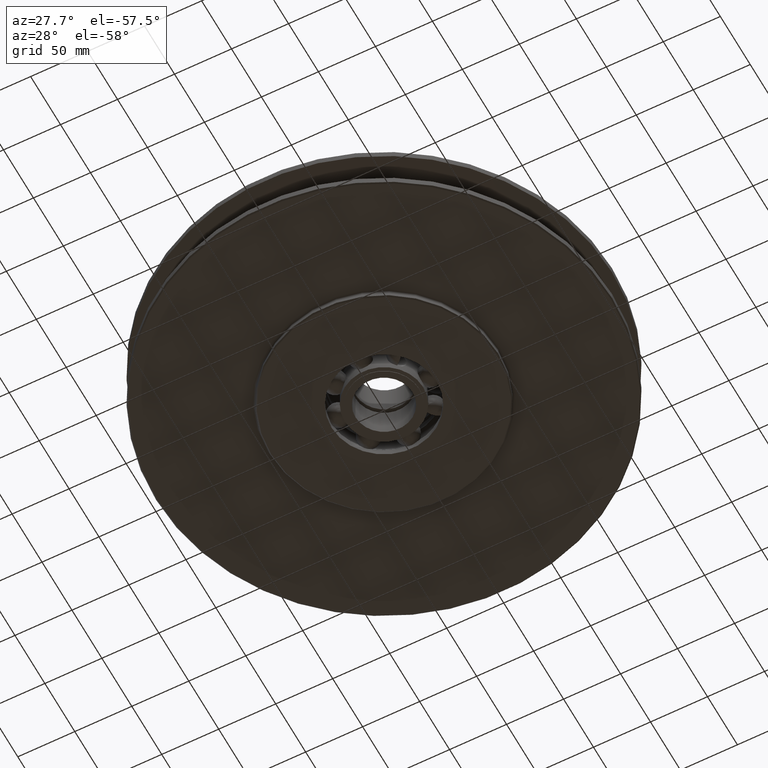
[diagram: clean part render]
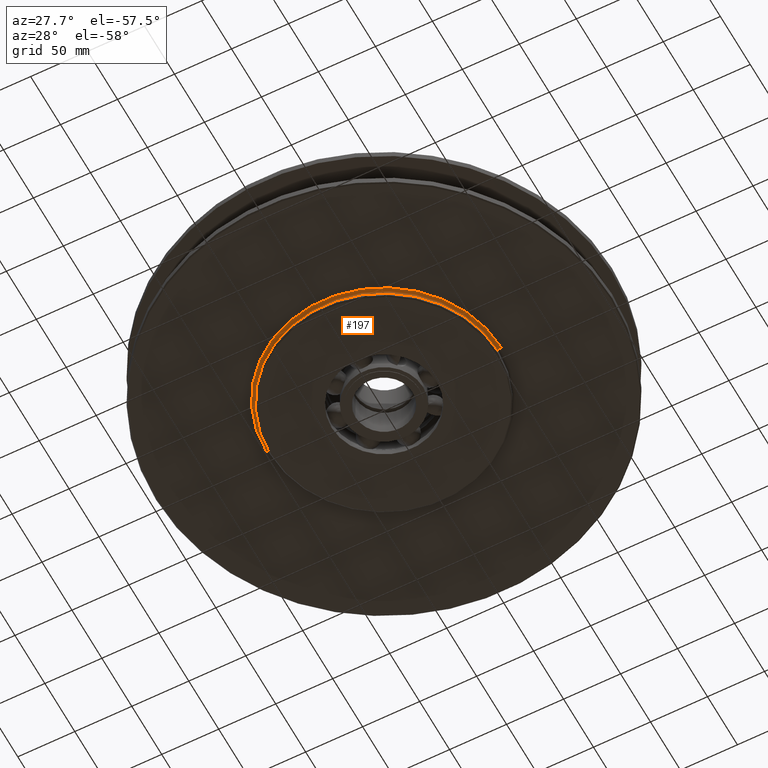
[diagram: same view with one face highlighted and labeled with its STEP entity id]
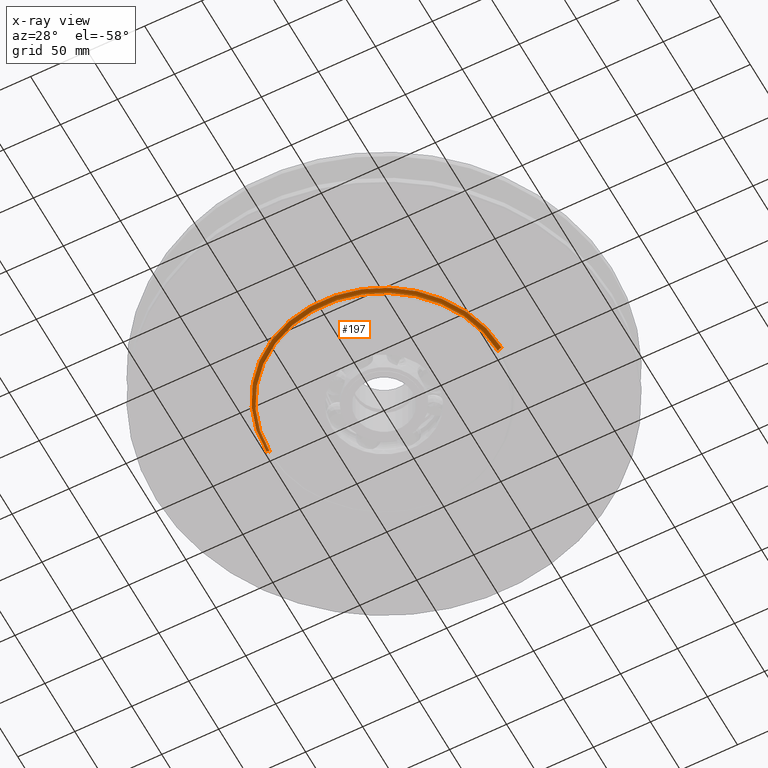
[diagram: x-ray of the same camera — body ghosted, the highlighted face saturated]
A machine part, auxiliary view. The second image highlights one B-rep face of the part: STEP entity #197.
The next image is the same camera in x-ray: the body ghosted, the highlighted face saturated — about 0% of this face is hidden behind the body in this view.
In plain terms, the highlighted toroidal blend (fillet) surface has major radius 103 mm and minor (blend) radius 3 mm.
Its self-contained STEP definition (entity closure, byte-faithful):
#197=ADVANCED_FACE('',(#490),#491,.F.);
#490=FACE_OUTER_BOUND('',#900,.T.);
#491=TOROIDAL_SURFACE('',#901,103.0,2.99999999999999);
#900=EDGE_LOOP('',(#1419,#1420,#1421,#1422));
#901=AXIS2_PLACEMENT_3D('',#1423,#1424,#1425);
#1419=ORIENTED_EDGE('',*,*,#2673,.F.);
#1420=ORIENTED_EDGE('',*,*,#2674,.T.);
#1421=ORIENTED_EDGE('',*,*,#2675,.F.);
#1422=ORIENTED_EDGE('',*,*,#2676,.F.);
#1423=CARTESIAN_POINT('',(0.0,0.0,-25.5));
#1424=DIRECTION('',(0.0,0.0,1.0));
#1425=DIRECTION('',(1.0,0.0,0.0));
#2673=EDGE_CURVE('',#3290,#3291,#3292,.T.);
#2674=EDGE_CURVE('',#3290,#3293,#3294,.T.);
#2675=EDGE_CURVE('',#3295,#3293,#3296,.T.);
#2676=EDGE_CURVE('',#3291,#3295,#3297,.T.);
#3290=VERTEX_POINT('',#5331);
#3291=VERTEX_POINT('',#5332);
#3292=CIRCLE('',#5333,2.99999999999999);
#3293=VERTEX_POINT('',#5334);
#3294=CIRCLE('',#5335,100.0);
#3295=VERTEX_POINT('',#5336);
#3296=CIRCLE('',#5337,2.99999999999999);
#3297=CIRCLE('',#5338,103.0);
#5331=CARTESIAN_POINT('',(-100.0,1.22464679914735E-014,-25.5));
#5332=CARTESIAN_POINT('',(-103.0,1.26138620312177E-014,-22.5));
#5333=AXIS2_PLACEMENT_3D('',#9264,#9265,#9266);
#5334=CARTESIAN_POINT('',(100.0,0.0,-25.5));
#5335=AXIS2_PLACEMENT_3D('',#9267,#9268,#9269);
#5336=CARTESIAN_POINT('',(103.0,0.0,-22.5));
#5337=AXIS2_PLACEMENT_3D('',#9270,#9271,#9272);
#5338=AXIS2_PLACEMENT_3D('',#9273,#9274,#9275);
#9264=CARTESIAN_POINT('',(-103.0,1.26138620312177E-014,-25.5));
#9265=DIRECTION('',(-1.22464679914735E-016,-1.0,0.0));
#9266=DIRECTION('',(-1.0,1.22464679914735E-016,-0.0));
#9267=CARTESIAN_POINT('',(0.0,0.0,-25.5));
#9268=DIRECTION('',(0.0,0.0,1.0));
#9269=DIRECTION('',(1.0,0.0,0.0));
#9270=CARTESIAN_POINT('',(103.0,-1.26138620312177E-014,-25.5));
#9271=DIRECTION('',(-1.22464679914735E-016,-1.0,0.0));
#9272=DIRECTION('',(1.0,-1.22464679914735E-016,0.0));
#9273=CARTESIAN_POINT('',(0.0,0.0,-22.5));
#9274=DIRECTION('',(0.0,0.0,1.0));
#9275=DIRECTION('',(1.0,0.0,0.0));